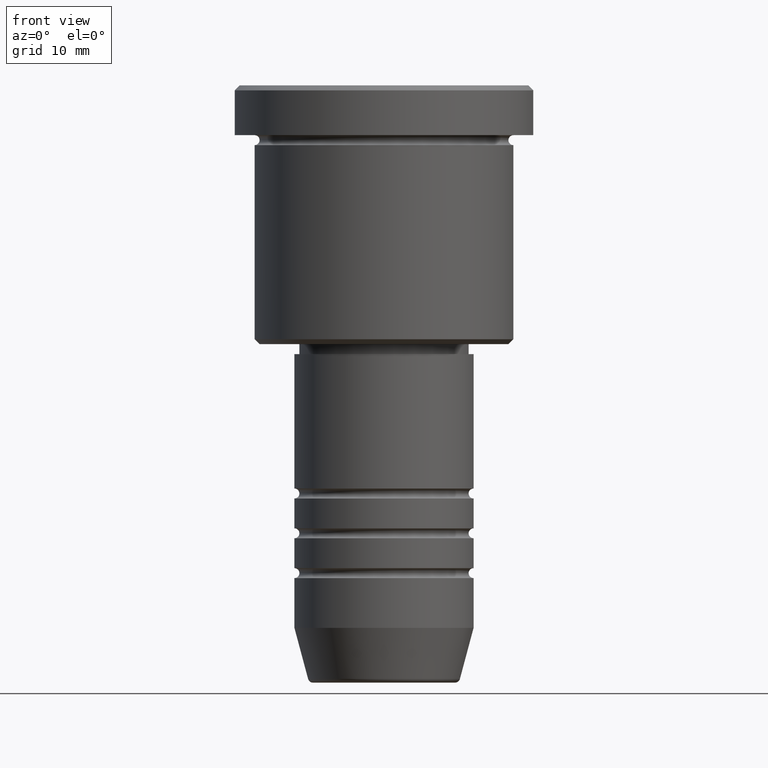
[diagram: clean part render]
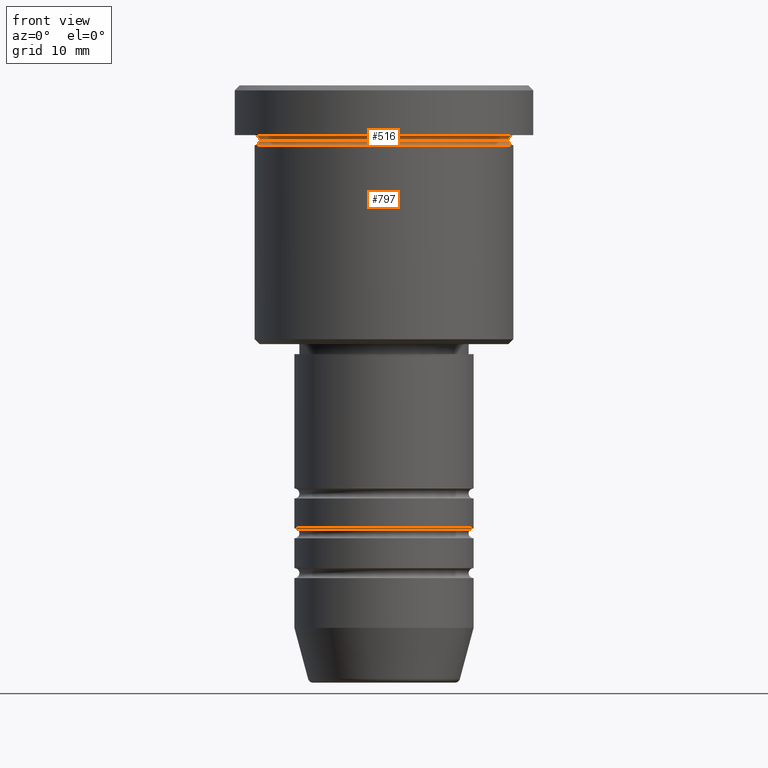
[diagram: same view with one multi-face feature highlighted, each face labeled with its STEP entity id]
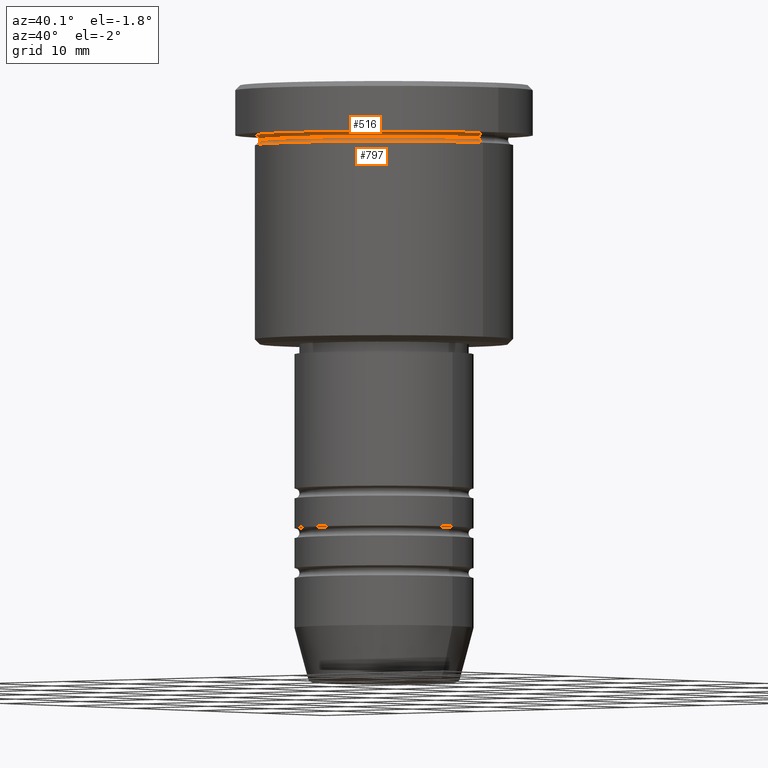
[diagram: same view with one multi-face feature highlighted, each face labeled with its STEP entity id]
A machine part, front view. The highlighted faces form ONE feature: a constant-radius fillet chain: 2 tangent blend faces with common blend radius 0.5 mm. The faces share edges in the B-rep.
A second angle (auxiliary view) of the same feature is appended — it is thin or edge-on in the first view.
Their STEP definitions:
[1] entity #516 (Torus):
#45 = CARTESIAN_POINT ( 'NONE',  ( 13.00000000000000000, 1.592040838891559095E-15, -5.500000000000000000 ) ) ;
#54 = AXIS2_PLACEMENT_3D ( 'NONE', #869, #253, #63 ) ;
#63 = DIRECTION ( 'NONE',  ( -1.000000000000000000, 0.000000000000000000, 0.000000000000000000 ) ) ;
#80 = VERTEX_POINT ( 'NONE', #798 ) ;
#95 = CIRCLE ( 'NONE', #711, 0.5000000000000004441 ) ;
#111 = CIRCLE ( 'NONE', #384, 12.49999999999999822 ) ;
#154 = CARTESIAN_POINT ( 'NONE',  ( -13.00000000000000000, 0.000000000000000000, -4.999999999999999112 ) ) ;
#192 = CIRCLE ( 'NONE', #905, 13.00000000000000000 ) ;
#213 = ORIENTED_EDGE ( 'NONE', *, *, #456, .T. ) ;
#215 = EDGE_LOOP ( 'NONE', ( #213, #518, #690, #259 ) ) ;
#252 = CARTESIAN_POINT ( 'NONE',  ( 0.000000000000000000, 0.000000000000000000, -4.999999999999999112 ) ) ;
#253 = DIRECTION ( 'NONE',  ( 0.000000000000000000, 0.000000000000000000, -1.000000000000000000 ) ) ;
#259 = ORIENTED_EDGE ( 'NONE', *, *, #373, .F. ) ;
#339 = CARTESIAN_POINT ( 'NONE',  ( -13.00000000000000000, 0.000000000000000000, -5.500000000000000000 ) ) ;
#341 = DIRECTION ( 'NONE',  ( -1.000000000000000000, -1.224646799147353454E-16, 0.000000000000000000 ) ) ;
#373 = EDGE_CURVE ( 'NONE', #80, #510, #95, .T. ) ;
#384 = AXIS2_PLACEMENT_3D ( 'NONE', #598, #498, #856 ) ;
#407 = EDGE_CURVE ( 'NONE', #510, #1032, #192, .T. ) ;
#436 = DIRECTION ( 'NONE',  ( -1.000000000000000000, 0.000000000000000000, 0.000000000000000000 ) ) ;
#456 = EDGE_CURVE ( 'NONE', #80, #473, #111, .T. ) ;
#473 = VERTEX_POINT ( 'NONE', #937 ) ;
#498 = DIRECTION ( 'NONE',  ( -0.000000000000000000, -0.000000000000000000, 1.000000000000000000 ) ) ;
#504 = DIRECTION ( 'NONE',  ( -1.224646799147353207E-16, 1.000000000000000000, 0.000000000000000000 ) ) ;
#510 = VERTEX_POINT ( 'NONE', #154 ) ;
#512 = FACE_OUTER_BOUND ( 'NONE', #215, .T. ) ;
#516 = ADVANCED_FACE ( 'NONE', ( #512 ), #980, .F. ) ;
#518 = ORIENTED_EDGE ( 'NONE', *, *, #1141, .T. ) ;
#598 = CARTESIAN_POINT ( 'NONE',  ( 0.000000000000000000, 0.000000000000000000, -5.500000000000000000 ) ) ;
#690 = ORIENTED_EDGE ( 'NONE', *, *, #407, .F. ) ;
#711 = AXIS2_PLACEMENT_3D ( 'NONE', #339, #774, #956 ) ;
#739 = AXIS2_PLACEMENT_3D ( 'NONE', #45, #504, #341 ) ;
#756 = CARTESIAN_POINT ( 'NONE',  ( 13.00000000000000000, 1.592040838891559095E-15, -4.999999999999999112 ) ) ;
#774 = DIRECTION ( 'NONE',  ( -0.000000000000000000, -1.000000000000000000, -0.000000000000000000 ) ) ;
#779 = DIRECTION ( 'NONE',  ( -0.000000000000000000, -0.000000000000000000, 1.000000000000000000 ) ) ;
#798 = CARTESIAN_POINT ( 'NONE',  ( -12.49999999999999822, 1.561424668912875308E-15, -5.500000000000000000 ) ) ;
#856 = DIRECTION ( 'NONE',  ( 1.000000000000000000, 0.000000000000000000, 0.000000000000000000 ) ) ;
#869 = CARTESIAN_POINT ( 'NONE',  ( 0.000000000000000000, 0.000000000000000000, -5.500000000000000000 ) ) ;
#905 = AXIS2_PLACEMENT_3D ( 'NONE', #252, #779, #436 ) ;
#937 = CARTESIAN_POINT ( 'NONE',  ( 12.49999999999999822, 0.000000000000000000, -5.500000000000000000 ) ) ;
#956 = DIRECTION ( 'NONE',  ( 0.000000000000000000, 0.000000000000000000, -1.000000000000000000 ) ) ;
#980 = TOROIDAL_SURFACE ( 'NONE', #54, 13.00000000000000000, 0.5000000000000000000 ) ;
#1032 = VERTEX_POINT ( 'NONE', #756 ) ;
#1102 = CIRCLE ( 'NONE', #739, 0.5000000000000004441 ) ;
#1141 = EDGE_CURVE ( 'NONE', #473, #1032, #1102, .T. ) ;
[2] entity #797 (Torus):
#34 = DIRECTION ( 'NONE',  ( -0.000000000000000000, -0.000000000000000000, 1.000000000000000000 ) ) ;
#80 = VERTEX_POINT ( 'NONE', #798 ) ;
#88 = CIRCLE ( 'NONE', #489, 0.5000000000000004441 ) ;
#100 = CARTESIAN_POINT ( 'NONE',  ( 0.000000000000000000, 0.000000000000000000, -5.500000000000000000 ) ) ;
#111 = CIRCLE ( 'NONE', #384, 12.49999999999999822 ) ;
#122 = CARTESIAN_POINT ( 'NONE',  ( 0.000000000000000000, 0.000000000000000000, -5.999999999999999112 ) ) ;
#134 = CIRCLE ( 'NONE', #767, 0.5000000000000004441 ) ;
#183 = CARTESIAN_POINT ( 'NONE',  ( 13.00000000000000000, 0.000000000000000000, -5.500000000000000000 ) ) ;
#198 = DIRECTION ( 'NONE',  ( -0.000000000000000000, -0.000000000000000000, 1.000000000000000000 ) ) ;
#238 = EDGE_LOOP ( 'NONE', ( #736, #1052, #862, #1016 ) ) ;
#333 = VERTEX_POINT ( 'NONE', #925 ) ;
#365 = TOROIDAL_SURFACE ( 'NONE', #1083, 13.00000000000000000, 0.5000000000000000000 ) ;
#384 = AXIS2_PLACEMENT_3D ( 'NONE', #598, #498, #856 ) ;
#390 = EDGE_CURVE ( 'NONE', #80, #333, #134, .T. ) ;
#402 = DIRECTION ( 'NONE',  ( 1.000000000000000000, 0.000000000000000000, 0.000000000000000000 ) ) ;
#456 = EDGE_CURVE ( 'NONE', #80, #473, #111, .T. ) ;
#461 = CIRCLE ( 'NONE', #794, 13.00000000000000178 ) ;
#466 = DIRECTION ( 'NONE',  ( 1.000000000000000000, 0.000000000000000000, 0.000000000000000000 ) ) ;
#473 = VERTEX_POINT ( 'NONE', #937 ) ;
#489 = AXIS2_PLACEMENT_3D ( 'NONE', #183, #1088, #709 ) ;
#492 = EDGE_CURVE ( 'NONE', #333, #1096, #461, .T. ) ;
#498 = DIRECTION ( 'NONE',  ( -0.000000000000000000, -0.000000000000000000, 1.000000000000000000 ) ) ;
#586 = CARTESIAN_POINT ( 'NONE',  ( 13.00000000000000178, 0.000000000000000000, -5.999999999999999112 ) ) ;
#598 = CARTESIAN_POINT ( 'NONE',  ( 0.000000000000000000, 0.000000000000000000, -5.500000000000000000 ) ) ;
#709 = DIRECTION ( 'NONE',  ( 0.000000000000000000, 0.000000000000000000, -1.000000000000000000 ) ) ;
#736 = ORIENTED_EDGE ( 'NONE', *, *, #456, .F. ) ;
#767 = AXIS2_PLACEMENT_3D ( 'NONE', #864, #1019, #1108 ) ;
#780 = EDGE_CURVE ( 'NONE', #473, #1096, #88, .T. ) ;
#794 = AXIS2_PLACEMENT_3D ( 'NONE', #122, #34, #402 ) ;
#797 = ADVANCED_FACE ( 'NONE', ( #810 ), #365, .F. ) ;
#798 = CARTESIAN_POINT ( 'NONE',  ( -12.49999999999999822, 1.561424668912875308E-15, -5.500000000000000000 ) ) ;
#810 = FACE_OUTER_BOUND ( 'NONE', #238, .T. ) ;
#856 = DIRECTION ( 'NONE',  ( 1.000000000000000000, 0.000000000000000000, 0.000000000000000000 ) ) ;
#862 = ORIENTED_EDGE ( 'NONE', *, *, #492, .T. ) ;
#864 = CARTESIAN_POINT ( 'NONE',  ( -13.00000000000000000, 1.592040838891559095E-15, -5.500000000000000000 ) ) ;
#925 = CARTESIAN_POINT ( 'NONE',  ( -13.00000000000000178, 1.592040838891559293E-15, -5.999999999999999112 ) ) ;
#937 = CARTESIAN_POINT ( 'NONE',  ( 12.49999999999999822, 0.000000000000000000, -5.500000000000000000 ) ) ;
#1016 = ORIENTED_EDGE ( 'NONE', *, *, #780, .F. ) ;
#1019 = DIRECTION ( 'NONE',  ( 1.224646799147353207E-16, 1.000000000000000000, 0.000000000000000000 ) ) ;
#1052 = ORIENTED_EDGE ( 'NONE', *, *, #390, .T. ) ;
#1083 = AXIS2_PLACEMENT_3D ( 'NONE', #100, #198, #466 ) ;
#1088 = DIRECTION ( 'NONE',  ( 0.000000000000000000, -1.000000000000000000, 0.000000000000000000 ) ) ;
#1096 = VERTEX_POINT ( 'NONE', #586 ) ;
#1108 = DIRECTION ( 'NONE',  ( -1.000000000000000000, 1.224646799147353454E-16, 0.000000000000000000 ) ) ;